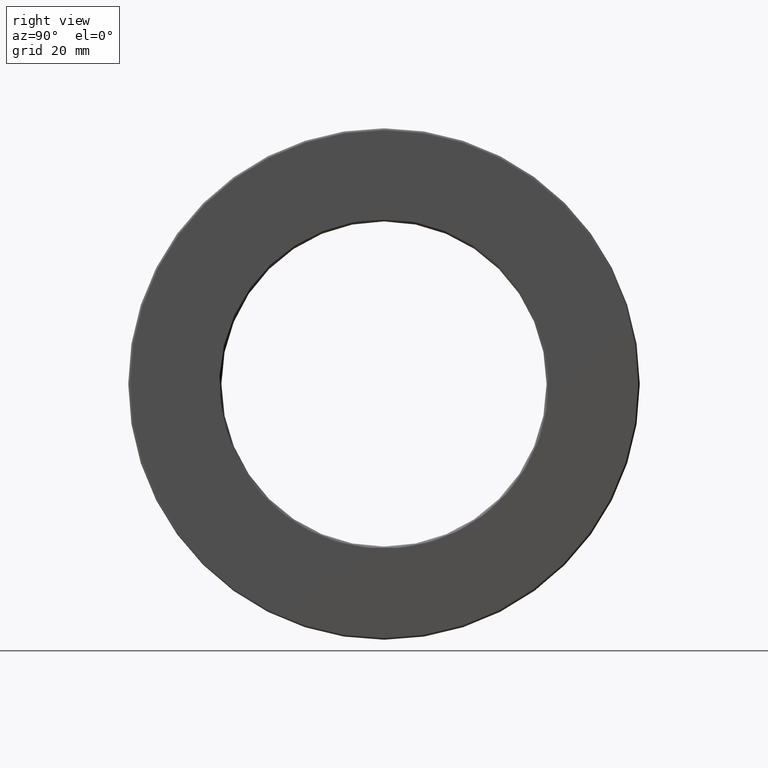
[diagram: clean part render]
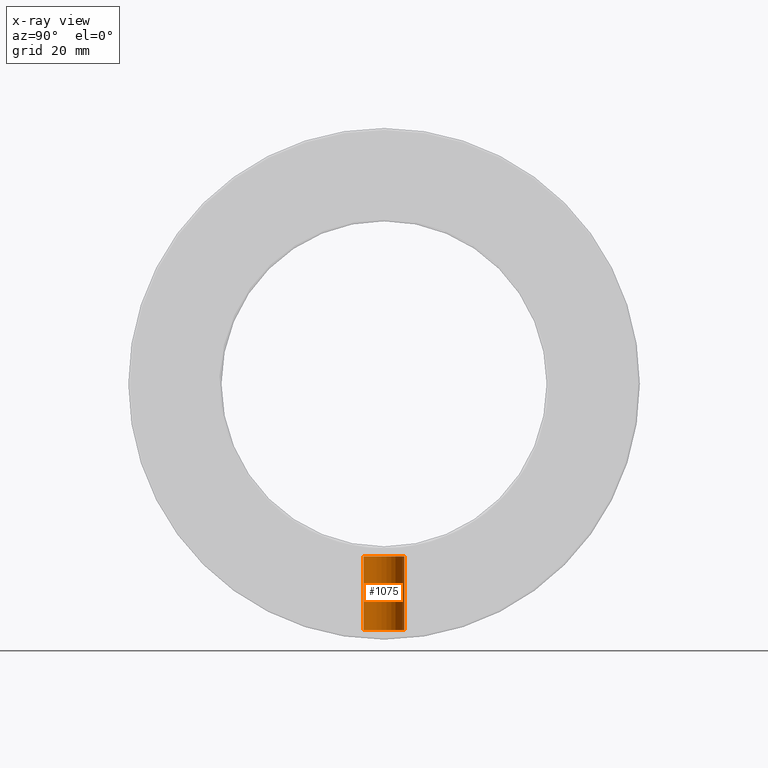
[diagram: x-ray — body ghosted, one internal face saturated and labeled with its STEP entity id]
A machine part, right view, then the same camera in x-ray: the body is ghosted and one INTERNAL B-rep face — a face not visible from any outside direction — is saturated and labeled: STEP entity #1075.
In plain terms, the highlighted cylindrical surface (bore or boss wall) has radius 4.7625 mm, axis along (0, -0, -1).
Its self-contained STEP definition (entity closure, byte-faithful):
#73 = FACE_OUTER_BOUND ( 'NONE', #1427, .T. ) ;
#179 = CARTESIAN_POINT ( 'NONE',  ( 0.0000000000000000000, 0.0000000000000000000, 0.0000000000000000000 ) ) ;
#204 = CARTESIAN_POINT ( 'NONE',  ( 0.0000000000000000000, -7.923480463337136300E-015, -2.269375000000000100 ) ) ;
#244 = DIRECTION ( 'NONE',  ( 0.0000000000000000000, 1.000000000000000000, -2.913971193241880000E-015 ) ) ;
#278 = CARTESIAN_POINT ( 'NONE',  ( 0.0000000000000000000, 0.1874999999999919800, -2.269375000000000600 ) ) ;
#288 = DIRECTION ( 'NONE',  ( 0.0000000000000000000, -3.491481338843133400E-015, -1.000000000000000000 ) ) ;
#380 = VERTEX_POINT ( 'NONE', #938 ) ;
#417 = ORIENTED_EDGE ( 'NONE', *, *, #1401, .T. ) ;
#419 = CYLINDRICAL_SURFACE ( 'NONE', #1382, 0.1874999999999999700 ) ;
#553 = EDGE_CURVE ( 'NONE', #1228, #1228, #920, .T. ) ;
#578 = AXIS2_PLACEMENT_3D ( 'NONE', #204, #645, #992 ) ;
#587 = EDGE_LOOP ( 'NONE', ( #1092 ) ) ;
#628 = DIRECTION ( 'NONE',  ( 0.0000000000000000000, 1.000000000000000000, -3.491481338843133400E-015 ) ) ;
#645 = DIRECTION ( 'NONE',  ( 0.0000000000000000000, -3.491481338843133400E-015, -1.000000000000000000 ) ) ;
#803 = CIRCLE ( 'NONE', #1358, 0.1875000000000000600 ) ;
#914 = CARTESIAN_POINT ( 'NONE',  ( 0.0000000000000000000, -5.551455328760583300E-015, -1.590000000000000300 ) ) ;
#920 = CIRCLE ( 'NONE', #578, 0.1874999999999999200 ) ;
#938 = CARTESIAN_POINT ( 'NONE',  ( 0.0000000000000000000, 0.1874999999999944800, -1.590000000000000700 ) ) ;
#992 = DIRECTION ( 'NONE',  ( 0.0000000000000000000, 1.000000000000000000, -2.913971193241881900E-015 ) ) ;
#1075 = ADVANCED_FACE ( 'NONE', ( #73, #1172 ), #419, .T. ) ;
#1092 = ORIENTED_EDGE ( 'NONE', *, *, #553, .F. ) ;
#1172 = FACE_OUTER_BOUND ( 'NONE', #587, .T. ) ;
#1228 = VERTEX_POINT ( 'NONE', #278 ) ;
#1358 = AXIS2_PLACEMENT_3D ( 'NONE', #914, #1454, #244 ) ;
#1382 = AXIS2_PLACEMENT_3D ( 'NONE', #179, #288, #628 ) ;
#1401 = EDGE_CURVE ( 'NONE', #380, #380, #803, .T. ) ;
#1427 = EDGE_LOOP ( 'NONE', ( #417 ) ) ;
#1454 = DIRECTION ( 'NONE',  ( 0.0000000000000000000, -3.491481338843133400E-015, -1.000000000000000000 ) ) ;